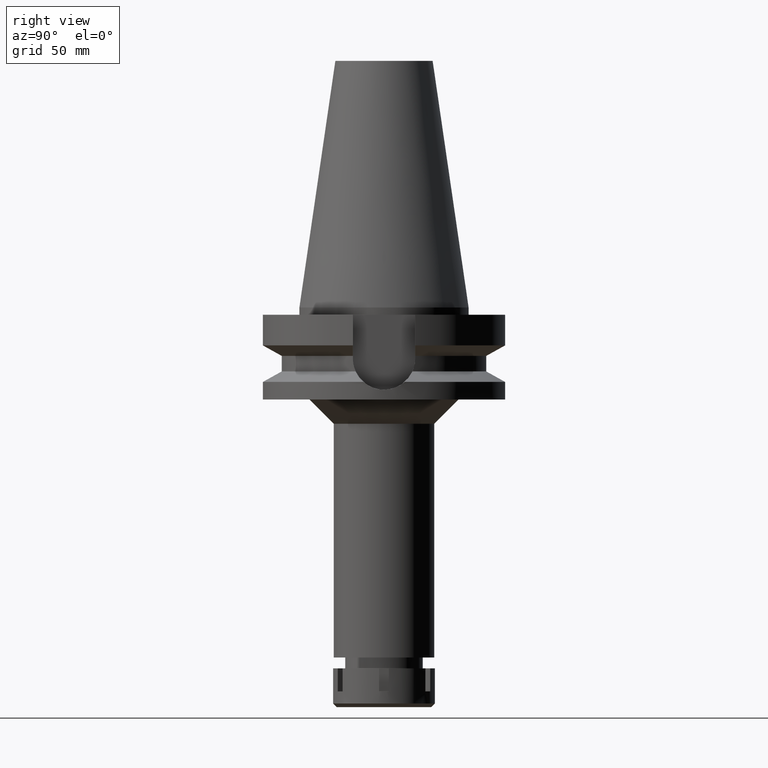
[diagram: clean part render]
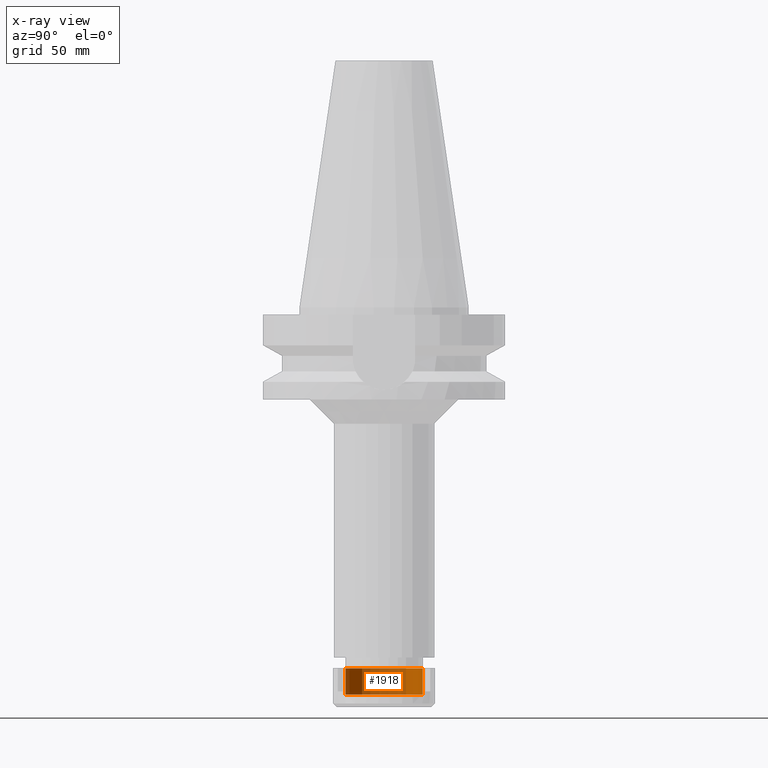
[diagram: x-ray — body ghosted, one internal face saturated and labeled with its STEP entity id]
A machine part, right view, then the same camera in x-ray: the body is ghosted and one INTERNAL B-rep face — a face not visible from any outside direction — is saturated and labeled: STEP entity #1918.
In plain terms, the highlighted cylindrical surface (partial cylindrical patch) has radius 16 mm, axis along (0, 0, -1).
Its self-contained STEP definition (entity closure, byte-faithful):
#172 = CARTESIAN_POINT ( 'NONE',  ( 0.0000000000000000000, 16.00000000000000000, -10.80000000000000071 ) ) ;
#459 = VERTEX_POINT ( 'NONE', #172 ) ;
#529 = CYLINDRICAL_SURFACE ( 'NONE', #1849, 16.00000000000000000 ) ;
#706 = LINE ( 'NONE', #1866, #2515 ) ;
#823 = ORIENTED_EDGE ( 'NONE', *, *, #1446, .T. ) ;
#985 = DIRECTION ( 'NONE',  ( 0.0000000000000000000, 0.0000000000000000000, 1.000000000000000000 ) ) ;
#1118 = AXIS2_PLACEMENT_3D ( 'NONE', #1392, #1450, #1691 ) ;
#1198 = DIRECTION ( 'NONE',  ( 0.0000000000000000000, 1.000000000000000000, 0.0000000000000000000 ) ) ;
#1212 = CARTESIAN_POINT ( 'NONE',  ( 0.0000000000000000000, 16.00000000000000000, 0.0000000000000000000 ) ) ;
#1246 = CIRCLE ( 'NONE', #3203, 16.00000000000000000 ) ;
#1392 = CARTESIAN_POINT ( 'NONE',  ( 0.0000000000000000000, 0.0000000000000000000, -10.80000000000000071 ) ) ;
#1446 = EDGE_CURVE ( 'NONE', #2376, #459, #2367, .T. ) ;
#1450 = DIRECTION ( 'NONE',  ( 0.0000000000000000000, 0.0000000000000000000, -1.000000000000000000 ) ) ;
#1482 = CARTESIAN_POINT ( 'NONE',  ( 0.0000000000000000000, -16.00000000000000000, -10.80000000000000071 ) ) ;
#1514 = CARTESIAN_POINT ( 'NONE',  ( 0.0000000000000000000, -16.00000000000000000, 0.0000000000000000000 ) ) ;
#1585 = ORIENTED_EDGE ( 'NONE', *, *, #2188, .F. ) ;
#1653 = EDGE_CURVE ( 'NONE', #2081, #3596, #1246, .T. ) ;
#1686 = DIRECTION ( 'NONE',  ( 0.0000000000000000000, -1.000000000000000000, 0.0000000000000000000 ) ) ;
#1691 = DIRECTION ( 'NONE',  ( 0.0000000000000000000, -1.000000000000000000, 0.0000000000000000000 ) ) ;
#1778 = LINE ( 'NONE', #1482, #2062 ) ;
#1849 = AXIS2_PLACEMENT_3D ( 'NONE', #2230, #2010, #1686 ) ;
#1866 = CARTESIAN_POINT ( 'NONE',  ( 0.0000000000000000000, 16.00000000000000000, -10.80000000000000071 ) ) ;
#1918 = ADVANCED_FACE ( 'NONE', ( #3369 ), #529, .F. ) ;
#1950 = ORIENTED_EDGE ( 'NONE', *, *, #1653, .T. ) ;
#2010 = DIRECTION ( 'NONE',  ( 0.0000000000000000000, 0.0000000000000000000, -1.000000000000000000 ) ) ;
#2062 = VECTOR ( 'NONE', #2088, 1000.000000000000000 ) ;
#2081 = VERTEX_POINT ( 'NONE', #1212 ) ;
#2088 = DIRECTION ( 'NONE',  ( 0.0000000000000000000, 0.0000000000000000000, 1.000000000000000000 ) ) ;
#2188 = EDGE_CURVE ( 'NONE', #2376, #3596, #1778, .T. ) ;
#2230 = CARTESIAN_POINT ( 'NONE',  ( 0.0000000000000000000, 0.0000000000000000000, 0.0000000000000000000 ) ) ;
#2367 = CIRCLE ( 'NONE', #1118, 16.00000000000000000 ) ;
#2376 = VERTEX_POINT ( 'NONE', #2896 ) ;
#2515 = VECTOR ( 'NONE', #2998, 1000.000000000000000 ) ;
#2651 = CARTESIAN_POINT ( 'NONE',  ( 0.0000000000000000000, 0.0000000000000000000, 0.0000000000000000000 ) ) ;
#2896 = CARTESIAN_POINT ( 'NONE',  ( 0.0000000000000000000, -16.00000000000000000, -10.80000000000000071 ) ) ;
#2998 = DIRECTION ( 'NONE',  ( 0.0000000000000000000, 0.0000000000000000000, 1.000000000000000000 ) ) ;
#3093 = EDGE_LOOP ( 'NONE', ( #1950, #1585, #823, #3660 ) ) ;
#3203 = AXIS2_PLACEMENT_3D ( 'NONE', #2651, #985, #1198 ) ;
#3369 = FACE_OUTER_BOUND ( 'NONE', #3093, .T. ) ;
#3596 = VERTEX_POINT ( 'NONE', #1514 ) ;
#3652 = EDGE_CURVE ( 'NONE', #459, #2081, #706, .T. ) ;
#3660 = ORIENTED_EDGE ( 'NONE', *, *, #3652, .T. ) ;